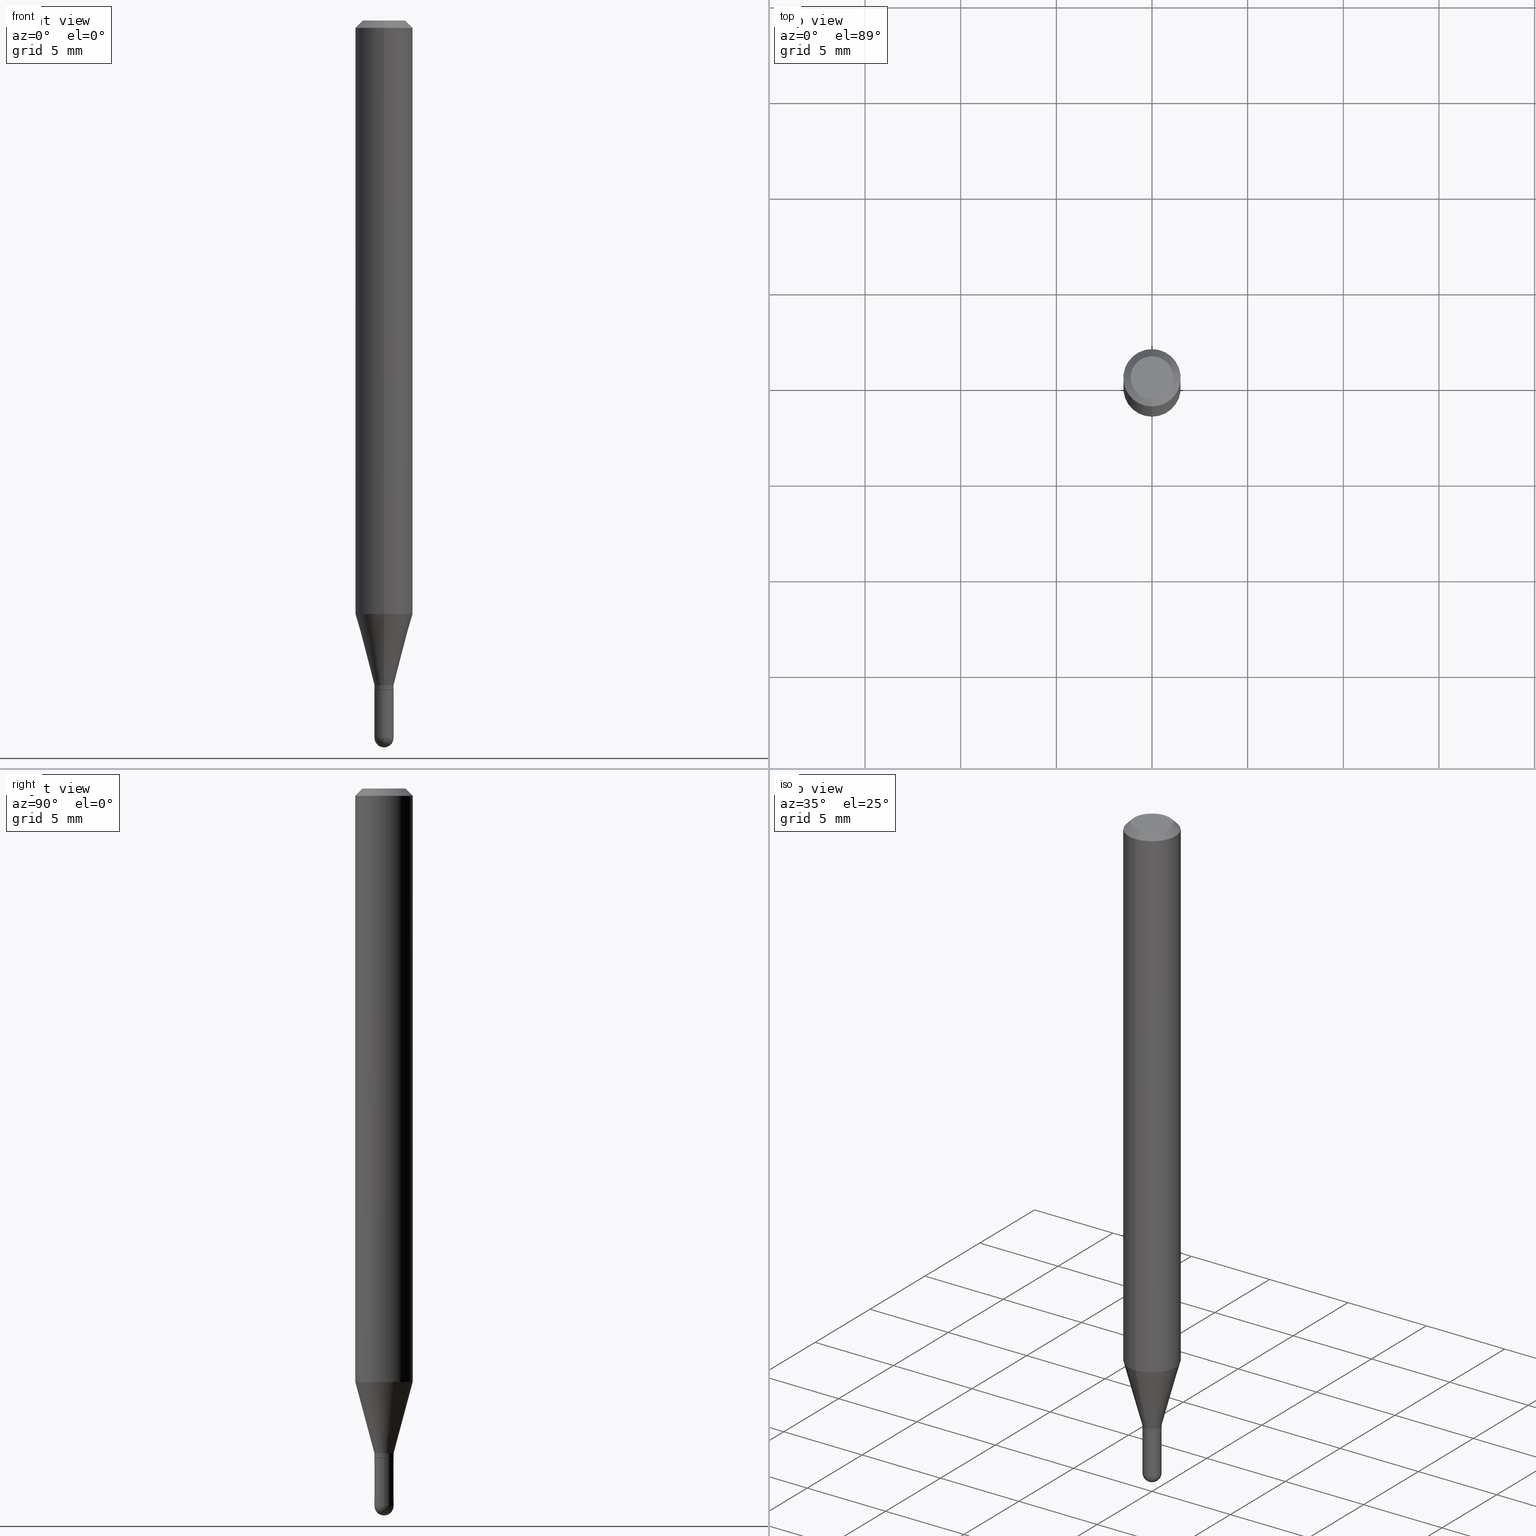
[diagram: canonical four-view strip — front | top / right | iso, engineering-drawing reading convention]
A machine part, canonical four-view strip (front | top / right | iso — engineering-drawing reading convention). The complete STEP part file that produces these views, byte-faithful:
ISO-10303-21;
HEADER;
FILE_DESCRIPTION (( 'STEP AP203' ),
    '1' );
FILE_NAME ('01949.STEP',
    '2024-03-07T19:46:34',
    ( '' ),
    ( '' ),
    'SwSTEP 2.0',
    'SolidWorks 2023',
    '' );
FILE_SCHEMA (( 'CONFIG_CONTROL_DESIGN' ));
ENDSEC;

DATA;
#1 = EDGE_CURVE ( 'NONE', #68, #279, #496, .T. ) ;
#2 = DIMENSIONAL_EXPONENTS ( 1.000000000000000000, 0.000000000000000000, 0.000000000000000000, 0.000000000000000000, 0.000000000000000000, 0.000000000000000000, 0.000000000000000000 ) ;
#3 = ORIENTED_EDGE ( 'NONE', *, *, #20, .F. ) ;
#4 = DIRECTION ( 'NONE',  ( -6.982962677686266711E-15, -1.000000000000000000, 0.000000000000000000 ) ) ;
#5 = ADVANCED_FACE ( 'NONE', ( #275 ), #423, .T. ) ;
#6 = ORIENTED_EDGE ( 'NONE', *, *, #16, .T. ) ;
#7 = DIRECTION ( 'NONE',  ( -6.982962677686266711E-15, -1.000000000000000000, 0.000000000000000000 ) ) ;
#8 = AXIS2_PLACEMENT_3D ( 'NONE', #19, #184, #501 ) ;
#9 = CARTESIAN_POINT ( 'NONE',  ( 0.000000000000000000, 0.000000000000000000, 0.000000000000000000 ) ) ;
#10 = DIRECTION ( 'NONE',  ( -2.444811295007267252E-29, 3.492422932273066730E-15, 1.000000000000000000 ) ) ;
#11 = DIRECTION ( 'NONE',  ( -6.982962677686265133E-15, -1.000000000000000000, 3.492422932273066336E-15 ) ) ;
#12 = SHAPE_DEFINITION_REPRESENTATION ( #285, #313 ) ;
#13 = DIRECTION ( 'NONE',  ( -2.445468806185136597E-29, 3.491481338843145583E-15, 1.000000000000000000 ) ) ;
#14 = CIRCLE ( 'NONE', #204, 0.01969999999999999876 ) ;
#15 = CARTESIAN_POINT ( 'NONE',  ( 1.375643647504531108E-16, 0.01969999999999518664, -1.377999999999999892 ) ) ;
#16 = EDGE_CURVE ( 'NONE', #244, #279, #493, .T. ) ;
#17 = DIRECTION ( 'NONE',  ( -4.937700262164664794E-15, -0.7071067811865617836, 0.7071067811865333619 ) ) ;
#18 = VERTEX_POINT ( 'NONE', #417 ) ;
#19 = CARTESIAN_POINT ( 'NONE',  ( 0.000000000000000000, 0.000000000000000000, 0.000000000000000000 ) ) ;
#20 = EDGE_CURVE ( 'NONE', #68, #41, #292, .T. ) ;
#21 = EDGE_CURVE ( 'NONE', #326, #479, #415, .T. ) ;
#22 = ORIENTED_EDGE ( 'NONE', *, *, #192, .T. ) ;
#23 = CARTESIAN_POINT ( 'NONE',  ( -1.340728834115426067E-16, -0.01920000000000481044, -1.377999999999999892 ) ) ;
#24 = DIRECTION ( 'NONE',  ( 1.000000000000000000, -6.982962677686278543E-15, 0.000000000000000000 ) ) ;
#25 = DIRECTION ( 'NONE',  ( -2.445468806185136597E-29, 3.491481338843145583E-15, 1.000000000000000000 ) ) ;
#26 = VECTOR ( 'NONE', #215, 39.37007874015748143 ) ;
#27 = SECURITY_CLASSIFICATION ( '', '', #484 ) ;
#28 = DESIGN_CONTEXT ( 'detailed design', #365, 'design' ) ;
#29 = CARTESIAN_POINT ( 'NONE',  ( 1.399769189447725642E-16, 0.01969999999999514154, -1.368099999999999650 ) ) ;
#30 = CARTESIAN_POINT ( 'NONE',  ( 0.000000000000000000, 0.000000000000000000, 0.000000000000000000 ) ) ;
#31 = ORIENTED_EDGE ( 'NONE', *, *, #53, .F. ) ;
#32 = PERSON_AND_ORGANIZATION_ROLE ( 'classification_officer' ) ;
#33 = ORIENTED_EDGE ( 'NONE', *, *, #143, .T. ) ;
#34 = EDGE_CURVE ( 'NONE', #507, #435, #231, .T. ) ;
#35 = CC_DESIGN_PERSON_AND_ORGANIZATION_ASSIGNMENT ( #246, #264, ( #256 ) ) ;
#36 = COORDINATED_UNIVERSAL_TIME_OFFSET ( 5, 0, .BEHIND. ) ;
#37 = EDGE_LOOP ( 'NONE', ( #72, #323, #164, #200, #396 ) ) ;
#38 = LINE ( 'NONE', #165, #214 ) ;
#39 = AXIS2_PLACEMENT_3D ( 'NONE', #368, #129, #98 ) ;
#40 = EDGE_LOOP ( 'NONE', ( #187, #303, #480, #112 ) ) ;
#41 = VERTEX_POINT ( 'NONE', #453 ) ;
#42 = ORIENTED_EDGE ( 'NONE', *, *, #464, .F. ) ;
#43 = DIRECTION ( 'NONE',  ( -6.982962677686265922E-15, -1.000000000000000000, 3.492422932273067519E-15 ) ) ;
#44 = CARTESIAN_POINT ( 'NONE',  ( 3.608805467862051881E-29, -5.157235602862340147E-15, -1.476399999999999935 ) ) ;
#45 = AXIS2_PLACEMENT_3D ( 'NONE', #186, #462, #66 ) ;
#46 = PERSON_AND_ORGANIZATION ( #319, #254 ) ;
#47 = DIRECTION ( 'NONE',  ( -1.000000000000000000, 6.982962677686265922E-15, -4.876176775795935793E-29 ) ) ;
#48 = AXIS2_PLACEMENT_3D ( 'NONE', #427, #83, #401 ) ;
#49 = CIRCLE ( 'NONE', #352, 0.01969999999999991896 ) ;
#50 = VERTEX_POINT ( 'NONE', #23 ) ;
#51 = APPROVAL_STATUS ( 'not_yet_approved' ) ;
#52 = CARTESIAN_POINT ( 'NONE',  ( 1.382005621053728545E-16, 0.01919999999999518620, -1.377999999999999892 ) ) ;
#53 = EDGE_CURVE ( 'NONE', #18, #435, #196, .T. ) ;
#54 = COORDINATED_UNIVERSAL_TIME_OFFSET ( 5, 0, .BEHIND. ) ;
#55 = DIRECTION ( 'NONE',  ( -2.444811295007267252E-29, 3.492422932273066730E-15, 1.000000000000000000 ) ) ;
#56 = DATE_AND_TIME ( #135, #371 ) ;
#57 = CC_DESIGN_PERSON_AND_ORGANIZATION_ASSIGNMENT ( #367, #87, ( #307 ) ) ;
#58 = DIRECTION ( 'NONE',  ( -2.445468806185136597E-29, 3.491481338843145583E-15, 1.000000000000000000 ) ) ;
#59 = EDGE_LOOP ( 'NONE', ( #138, #209, #355, #468 ) ) ;
#60 = ORIENTED_EDGE ( 'NONE', *, *, #192, .F. ) ;
#61 = DIRECTION ( 'NONE',  ( -2.445468806185136597E-29, 3.491481338843145583E-15, 1.000000000000000000 ) ) ;
#62 = CYLINDRICAL_SURFACE ( 'NONE', #309, 0.01969999999999991896 ) ;
#63 = FACE_OUTER_BOUND ( 'NONE', #37, .T. ) ;
#64 = APPROVAL ( #508, 'UNSPECIFIED' ) ;
#65 = DIRECTION ( 'NONE',  ( -6.982962677686266711E-15, -1.000000000000000000, 0.000000000000000000 ) ) ;
#66 = DIRECTION ( 'NONE',  ( 7.105427357601000281E-15, 1.000000000000000000, 0.000000000000000000 ) ) ;
#67 = CIRCLE ( 'NONE', #429, 0.01969999999999989468 ) ;
#68 = VERTEX_POINT ( 'NONE', #105 ) ;
#69 = CARTESIAN_POINT ( 'NONE',  ( 4.123439461173743285E-16, 0.05904999999999994975, -0.01500000000000023016 ) ) ;
#70 = VERTEX_POINT ( 'NONE', #171 ) ;
#71 = PRODUCT_DEFINITION ( 'UNKNOWN', '', #307, #28 ) ;
#72 = ORIENTED_EDGE ( 'NONE', *, *, #1, .F. ) ;
#73 = DIRECTION ( 'NONE',  ( 1.000000000000000000, 0.000000000000000000, 0.000000000000000000 ) ) ;
#74 = AXIS2_PLACEMENT_3D ( 'NONE', #413, #230, #506 ) ;
#75 = ORIENTED_EDGE ( 'NONE', *, *, #143, .F. ) ;
#76 = LOCAL_TIME ( 14, 46, 34.00000000000000000, #495 ) ;
#77 = VECTOR ( 'NONE', #461, 39.37007874015748143 ) ;
#78 = ORIENTED_EDGE ( 'NONE', *, *, #53, .T. ) ;
#79 = DIRECTION ( 'NONE',  ( -6.982962677686265922E-15, -1.000000000000000000, 3.505890868245046092E-15 ) ) ;
#80 =( LENGTH_UNIT ( ) NAMED_UNIT ( * ) SI_UNIT ( $, .METRE. ) );
#81 = EDGE_CURVE ( 'NONE', #376, #18, #505, .T. ) ;
#82 = DIRECTION ( 'NONE',  ( -6.982962677686265922E-15, -1.000000000000000000, 4.626330217890369336E-15 ) ) ;
#83 = DIRECTION ( 'NONE',  ( -2.445468806185136597E-29, 3.491481338843145583E-15, 1.000000000000000000 ) ) ;
#84 = MECHANICAL_CONTEXT ( 'NONE', #467, 'mechanical' ) ;
#85 = FACE_OUTER_BOUND ( 'NONE', #419, .T. ) ;
#86 = APPROVAL_PERSON_ORGANIZATION ( #160, #389, #88 ) ;
#87 = PERSON_AND_ORGANIZATION_ROLE ( 'design_supplier' ) ;
#88 = APPROVAL_ROLE ( '' ) ;
#89 = CARTESIAN_POINT ( 'NONE',  ( -0.01969999999999999876, -4.843065247852196904E-15, -1.377999999999999892 ) ) ;
#90 =( NAMED_UNIT ( * ) SI_UNIT ( $, .STERADIAN. ) SOLID_ANGLE_UNIT ( ) );
#91 = PLANE ( 'NONE',  #221 ) ;
#92 = DIRECTION ( 'NONE',  ( 6.982962677686265922E-15, 1.000000000000000000, -3.505890868245046092E-15 ) ) ;
#93 = EDGE_CURVE ( 'NONE', #50, #333, #172, .T. ) ;
#94 = FACE_OUTER_BOUND ( 'NONE', #476, .T. ) ;
#95 = AXIS2_PLACEMENT_3D ( 'NONE', #252, #421, #65 ) ;
#96 = DIRECTION ( 'NONE',  ( -2.444811295007267252E-29, 3.492422932273066730E-15, 1.000000000000000000 ) ) ;
#97 = AXIS2_PLACEMENT_3D ( 'NONE', #189, #345, #308 ) ;
#98 = DIRECTION ( 'NONE',  ( 6.982962677686265922E-15, 1.000000000000000000, -3.492422932273066730E-15 ) ) ;
#99 = DIRECTION ( 'NONE',  ( 1.000000000000000000, -6.982962677686278543E-15, 0.000000000000000000 ) ) ;
#100 = ORIENTED_EDGE ( 'NONE', *, *, #412, .F. ) ;
#101 = CYLINDRICAL_SURFACE ( 'NONE', #242, 0.01969999999999999876 ) ;
#102 = CARTESIAN_POINT ( 'NONE',  ( 3.368949964520014431E-29, -4.812558800672285080E-15, -1.377999999999999892 ) ) ;
#103 = AXIS2_PLACEMENT_3D ( 'NONE', #210, #362, #7 ) ;
#104 = EDGE_LOOP ( 'NONE', ( #60, #395, #277, #42 ) ) ;
#105 = CARTESIAN_POINT ( 'NONE',  ( -0.01969999999999999876, -4.843065247852196904E-15, -1.476399999999999491 ) ) ;
#106 = EDGE_CURVE ( 'NONE', #450, #18, #193, .T. ) ;
#107 = DIRECTION ( 'NONE',  ( -6.982962677686266711E-15, -1.000000000000000000, 0.000000000000000000 ) ) ;
#108 = DIRECTION ( 'NONE',  ( -2.444811295007267252E-29, 3.492422932273066730E-15, 1.000000000000000000 ) ) ;
#109 = EDGE_CURVE ( 'NONE', #70, #306, #431, .T. ) ;
#110 = PERSON_AND_ORGANIZATION ( #319, #254 ) ;
#111 = DIRECTION ( 'NONE',  ( -6.982962677686266711E-15, -1.000000000000000000, 0.000000000000000000 ) ) ;
#112 = ORIENTED_EDGE ( 'NONE', *, *, #81, .F. ) ;
#113 = APPROVAL_ROLE ( '' ) ;
#114 = ORIENTED_EDGE ( 'NONE', *, *, #317, .T. ) ;
#115 = DIRECTION ( 'NONE',  ( 1.000000000000000000, -6.982962677686278543E-15, 0.000000000000000000 ) ) ;
#116 = DATE_AND_TIME ( #320, #381 ) ;
#117 = ORIENTED_EDGE ( 'NONE', *, *, #130, .F. ) ;
#118 = CIRCLE ( 'NONE', #168, 0.01969999999999999876 ) ;
#119 = ORIENTED_EDGE ( 'NONE', *, *, #356, .F. ) ;
#120 = FACE_OUTER_BOUND ( 'NONE', #104, .T. ) ;
#121 = UNCERTAINTY_MEASURE_WITH_UNIT (LENGTH_MEASURE( 1.000000000000000082E-05 ), #441, 'distance_accuracy_value', 'NONE');
#122 = ORIENTED_EDGE ( 'NONE', *, *, #372, .T. ) ;
#123 = DIRECTION ( 'NONE',  ( 1.000000000000000000, -6.982962677686266711E-15, 4.883557194083112340E-29 ) ) ;
#124 = CYLINDRICAL_SURFACE ( 'NONE', #346, 0.01969999999999991896 ) ;
#125 = ORIENTED_EDGE ( 'NONE', *, *, #183, .T. ) ;
#126 = CARTESIAN_POINT ( 'NONE',  ( 3.368949964520014431E-29, -4.812558800672285080E-15, -1.377999999999999892 ) ) ;
#127 = ADVANCED_FACE ( 'NONE', ( #239 ), #359, .T. ) ;
#128 = AXIS2_PLACEMENT_3D ( 'NONE', #126, #314, #111 ) ;
#129 = DIRECTION ( 'NONE',  ( 2.444811295007266972E-29, -3.492422932273066730E-15, -1.000000000000000000 ) ) ;
#130 = EDGE_CURVE ( 'NONE', #479, #326, #393, .T. ) ;
#131 = AXIS2_PLACEMENT_3D ( 'NONE', #266, #451, #411 ) ;
#132 = AXIS2_PLACEMENT_3D ( 'NONE', #102, #96, #447 ) ;
#133 = DIRECTION ( 'NONE',  ( 2.438088387897960049E-29, -3.491481338843145188E-15, -1.000000000000000000 ) ) ;
#134 = DIRECTION ( 'NONE',  ( 5.024295867788180719E-15, 0.7071067811865666686, 0.7071067811865284769 ) ) ;
#135 = CALENDAR_DATE ( 2024, 7, 3 ) ;
#136 = DATE_AND_TIME ( #489, #76 ) ;
#137 = CARTESIAN_POINT ( 'NONE',  ( -0.01969999999999999876, 1.399769189447397278E-16, -9.690302127802162501E-31 ) ) ;
#138 = ORIENTED_EDGE ( 'NONE', *, *, #190, .F. ) ;
#139 = CIRCLE ( 'NONE', #422, 0.01919999999999999832 ) ;
#140 = CIRCLE ( 'NONE', #348, 0.01969999999999999876 ) ;
#141 = CLOSED_SHELL ( 'NONE', ( #375, #5, #302, #349, #379, #212, #127, #402, #227, #370, #203, #452 ) ) ;
#142 = CARTESIAN_POINT ( 'NONE',  ( 0.000000000000000000, 0.000000000000000000, 0.000000000000000000 ) ) ;
#143 = EDGE_CURVE ( 'NONE', #470, #450, #490, .T. ) ;
#144 = FACE_OUTER_BOUND ( 'NONE', #465, .T. ) ;
#145 = ORIENTED_EDGE ( 'NONE', *, *, #106, .T. ) ;
#146 = CARTESIAN_POINT ( 'NONE',  ( -4.051124067684085231E-16, -0.05905000000000005383, -0.01499999999999981730 ) ) ;
#147 = CARTESIAN_POINT ( 'NONE',  ( 3.599717260347271507E-16, 0.04404999999999999888, -1.776619958574267450E-16 ) ) ;
#148 = CARTESIAN_POINT ( 'NONE',  ( 3.367727558872510163E-29, -4.810812589206148857E-15, -1.377499999999999947 ) ) ;
#149 = ORIENTED_EDGE ( 'NONE', *, *, #109, .T. ) ;
#150 = ADVANCED_FACE ( 'NONE', ( #85 ), #385, .T. ) ;
#151 = CIRCLE ( 'NONE', #405, 0.04404999999999999888 ) ;
#152 = DIRECTION ( 'NONE',  ( -2.444811295007267252E-29, 3.492422932273066730E-15, 1.000000000000000000 ) ) ;
#153 = AXIS2_PLACEMENT_3D ( 'NONE', #380, #301, #271 ) ;
#154 = EDGE_LOOP ( 'NONE', ( #392, #114, #161, #344 ) ) ;
#155 = DIRECTION ( 'NONE',  ( -2.444811295007267252E-29, 3.492422932273066730E-15, 1.000000000000000000 ) ) ;
#156 = CARTESIAN_POINT ( 'NONE',  ( 3.368949964520014431E-29, -4.812558800672285080E-15, -1.377999999999999892 ) ) ;
#157 = CARTESIAN_POINT ( 'NONE',  ( 2.985710637963151860E-29, -4.265099855538406098E-15, -1.221243800722164430 ) ) ;
#158 = LINE ( 'NONE', #199, #298 ) ;
#159 = EDGE_LOOP ( 'NONE', ( #235, #224 ) ) ;
#160 = PERSON_AND_ORGANIZATION ( #319, #254 ) ;
#161 = ORIENTED_EDGE ( 'NONE', *, *, #372, .F. ) ;
#162 = DIRECTION ( 'NONE',  ( -2.445468806185136597E-29, 3.491481338843145583E-15, 1.000000000000000000 ) ) ;
#163 = DIRECTION ( 'NONE',  ( 0.000000000000000000, 0.000000000000000000, 1.000000000000000000 ) ) ;
#164 = ORIENTED_EDGE ( 'NONE', *, *, #238, .T. ) ;
#165 = CARTESIAN_POINT ( 'NONE',  ( -1.375643647504188693E-16, -0.01969999999999991896, 6.880073176577914602E-17 ) ) ;
#166 = ORIENTED_EDGE ( 'NONE', *, *, #16, .F. ) ;
#167 = CARTESIAN_POINT ( 'NONE',  ( -3.536586717851222218E-16, -0.04404999999999999888, 1.300204644758304070E-16 ) ) ;
#168 = AXIS2_PLACEMENT_3D ( 'NONE', #446, #449, #265 ) ;
#169 = ORIENTED_EDGE ( 'NONE', *, *, #296, .T. ) ;
#170 = AXIS2_PLACEMENT_3D ( 'NONE', #398, #328, #79 ) ;
#171 = CARTESIAN_POINT ( 'NONE',  ( 0.01969999999999999876, -5.120606531547356216E-15, -1.476399999999999491 ) ) ;
#172 = CIRCLE ( 'NONE', #95, 0.01919999999999999832 ) ;
#173 = DIRECTION ( 'NONE',  ( -2.444811295007267252E-29, 3.492422932273066730E-15, 1.000000000000000000 ) ) ;
#174 = CARTESIAN_POINT ( 'NONE',  ( 0.000000000000000000, 0.000000000000000000, 0.000000000000000000 ) ) ;
#175 = APPROVAL_STATUS ( 'not_yet_approved' ) ;
#176 = PLANE ( 'NONE',  #39 ) ;
#177 = AXIS2_PLACEMENT_3D ( 'NONE', #261, #55, #258 ) ;
#178 = DIRECTION ( 'NONE',  ( 1.000000000000000000, -6.982962677686278543E-15, 0.000000000000000000 ) ) ;
#179 = APPROVAL_PERSON_ORGANIZATION ( #110, #64, #113 ) ;
#180 = CARTESIAN_POINT ( 'NONE',  ( 4.195754854663687794E-16, 0.05904999999999571703, -1.221243800722164652 ) ) ;
#181 = CARTESIAN_POINT ( 'NONE',  ( 3.369856014923117948E-29, -4.811261284925853951E-15, -1.377999999999999892 ) ) ;
#182 = CARTESIAN_POINT ( 'NONE',  ( 3.610490145451734531E-29, -5.154823048668018475E-15, -1.476399999999999491 ) ) ;
#183 = EDGE_CURVE ( 'NONE', #288, #41, #67, .T. ) ;
#184 = DIRECTION ( 'NONE',  ( -2.444811295007267252E-29, 3.492422932273066730E-15, 1.000000000000000000 ) ) ;
#185 = CIRCLE ( 'NONE', #45, 0.01969999999999989468 ) ;
#186 = CARTESIAN_POINT ( 'NONE',  ( 3.608805467862051881E-29, -5.157235602862340147E-15, -1.476399999999999935 ) ) ;
#187 = ORIENTED_EDGE ( 'NONE', *, *, #259, .F. ) ;
#188 = PERSON_AND_ORGANIZATION ( #319, #254 ) ;
#189 = CARTESIAN_POINT ( 'NONE',  ( 3.667216942510906659E-31, -5.238634398409608650E-17, -0.01500000000000002373 ) ) ;
#190 = EDGE_CURVE ( 'NONE', #428, #326, #460, .T. ) ;
#191 = ORIENTED_EDGE ( 'NONE', *, *, #238, .F. ) ;
#192 = EDGE_CURVE ( 'NONE', #326, #450, #249, .T. ) ;
#193 = LINE ( 'NONE', #255, #485 ) ;
#194 = CONICAL_SURFACE ( 'NONE', #74, 0.05904999999999999832, 0.7853981633974483900 ) ;
#195 = DIRECTION ( 'NONE',  ( -6.982962677686265922E-15, -1.000000000000000000, 3.492422932273067519E-15 ) ) ;
#196 = CIRCLE ( 'NONE', #97, 0.05904999999999999832 ) ;
#197 = DIRECTION ( 'NONE',  ( 1.839019923739601104E-15, 0.2588190451025250693, 0.9659258262890670910 ) ) ;
#198 = CC_DESIGN_DATE_AND_TIME_ASSIGNMENT ( #136, #262, ( #27 ) ) ;
#199 = CARTESIAN_POINT ( 'NONE',  ( -4.123439461173739834E-16, -0.05904999999999999832, 2.062275741507245947E-16 ) ) ;
#200 = ORIENTED_EDGE ( 'NONE', *, *, #391, .T. ) ;
#201 = ORIENTED_EDGE ( 'NONE', *, *, #109, .F. ) ;
#202 = CONICAL_SURFACE ( 'NONE', #374, 0.01969999999999991550, 0.2617993877991502960 ) ;
#203 = ADVANCED_FACE ( 'NONE', ( #473 ), #474, .T. ) ;
#204 = AXIS2_PLACEMENT_3D ( 'NONE', #181, #13, #178 ) ;
#205 = VERTEX_POINT ( 'NONE', #324 ) ;
#206 = APPROVAL ( #51, 'UNSPECIFIED' ) ;
#207 =( NAMED_UNIT ( * ) PLANE_ANGLE_UNIT ( ) SI_UNIT ( $, .RADIAN. ) );
#208 = CALENDAR_DATE ( 2024, 7, 3 ) ;
#209 = ORIENTED_EDGE ( 'NONE', *, *, #356, .T. ) ;
#210 = CARTESIAN_POINT ( 'NONE',  ( 3.344746332699441266E-29, -4.777983813642781074E-15, -1.368099999999999650 ) ) ;
#211 = CARTESIAN_POINT ( 'NONE',  ( 2.985710637963151860E-29, -4.265099855538406098E-15, -1.221243800722164430 ) ) ;
#212 = ADVANCED_FACE ( 'NONE', ( #120 ), #325, .T. ) ;
#213 = CIRCLE ( 'NONE', #170, 0.05904999999999999832 ) ;
#214 = VECTOR ( 'NONE', #361, 39.37007874015748143 ) ;
#215 = DIRECTION ( 'NONE',  ( -2.444811295007267252E-29, 3.492422932273066730E-15, 1.000000000000000000 ) ) ;
#216 = PRODUCT_RELATED_PRODUCT_CATEGORY ( 'detail', '', ( #256 ) ) ;
#217 = DIRECTION ( 'NONE',  ( -2.444811295007267252E-29, 3.492422932273066730E-15, 1.000000000000000000 ) ) ;
#218 = PERSON_AND_ORGANIZATION_ROLE ( 'creator' ) ;
#219 = CARTESIAN_POINT ( 'NONE',  ( 0.01969999999999999876, -4.948825649676273954E-15, -1.377999999999999892 ) ) ;
#220 = CLOSED_SHELL ( 'NONE', ( #437, #150, #283, #399, #383 ) ) ;
#221 = AXIS2_PLACEMENT_3D ( 'NONE', #156, #343, #341 ) ;
#222 = CARTESIAN_POINT ( 'NONE',  ( 1.399769189447754238E-16, 0.01969999999999479112, -1.476399999999999491 ) ) ;
#223 = AXIS2_PLACEMENT_3D ( 'NONE', #148, #108, #418 ) ;
#224 = ORIENTED_EDGE ( 'NONE', *, *, #268, .F. ) ;
#225 = APPROVAL_ROLE ( '' ) ;
#226 = FACE_OUTER_BOUND ( 'NONE', #316, .T. ) ;
#227 = ADVANCED_FACE ( 'NONE', ( #94 ), #176, .F. ) ;
#228 = CARTESIAN_POINT ( 'NONE',  ( -4.123439461173442532E-16, -0.05905000000000428656, -1.221243800722164430 ) ) ;
#229 = CC_DESIGN_PERSON_AND_ORGANIZATION_ASSIGNMENT ( #46, #218, ( #71 ) ) ;
#230 = DIRECTION ( 'NONE',  ( 2.444811295007267252E-29, -3.492422932273066730E-15, -1.000000000000000000 ) ) ;
#231 = LINE ( 'NONE', #146, #334 ) ;
#232 = EDGE_CURVE ( 'NONE', #479, #470, #400, .T. ) ;
#233 = EDGE_LOOP ( 'NONE', ( #6, #169 ) ) ;
#234 = EDGE_CURVE ( 'NONE', #376, #507, #151, .T. ) ;
#235 = ORIENTED_EDGE ( 'NONE', *, *, #93, .F. ) ;
#236 = CARTESIAN_POINT ( 'NONE',  ( 3.610490145451734531E-29, -5.154823048668018475E-15, -1.476399999999999491 ) ) ;
#237 = ORIENTED_EDGE ( 'NONE', *, *, #510, .F. ) ;
#238 = EDGE_CURVE ( 'NONE', #41, #70, #118, .T. ) ;
#239 = FACE_OUTER_BOUND ( 'NONE', #497, .T. ) ;
#240 = ORIENTED_EDGE ( 'NONE', *, *, #81, .T. ) ;
#241 = EDGE_LOOP ( 'NONE', ( #122, #342, #117, #237 ) ) ;
#242 = AXIS2_PLACEMENT_3D ( 'NONE', #142, #25, #299 ) ;
#243 = CC_DESIGN_APPROVAL ( #64, ( #307 ) ) ;
#244 = VERTEX_POINT ( 'NONE', #219 ) ;
#245 = CONICAL_SURFACE ( 'NONE', #445, 0.05904999999999999832, 0.7853981633974483900 ) ;
#246 = PERSON_AND_ORGANIZATION ( #319, #254 ) ;
#247 = LENGTH_MEASURE_WITH_UNIT ( LENGTH_MEASURE( 0.02539999999999999897 ), #80 );
#248 = ORIENTED_EDGE ( 'NONE', *, *, #297, .T. ) ;
#249 = LINE ( 'NONE', #29, #331 ) ;
#250 = COORDINATED_UNIVERSAL_TIME_OFFSET ( 5, 0, .BEHIND. ) ;
#251 = DIRECTION ( 'NONE',  ( -6.982962677686265922E-15, -1.000000000000000000, 4.626330217890369336E-15 ) ) ;
#252 = CARTESIAN_POINT ( 'NONE',  ( 3.368949964520014431E-29, -4.812558800672285080E-15, -1.377999999999999892 ) ) ;
#253 = MANIFOLD_SOLID_BREP ( 'Body-Move/Copy2[1]', #220 ) ;
#254 = ORGANIZATION ( 'UNSPECIFIED', 'UNSPECIFIED', '' ) ;
#255 = CARTESIAN_POINT ( 'NONE',  ( 4.195754854663390985E-16, 0.05904999999999999832, -2.062275741507245947E-16 ) ) ;
#256 = PRODUCT ( '01949', '01949', '', ( #84 ) ) ;
#257 = FACE_OUTER_BOUND ( 'NONE', #233, .T. ) ;
#258 = DIRECTION ( 'NONE',  ( -6.982962677686265133E-15, -1.000000000000000000, 3.492422932273066336E-15 ) ) ;
#259 = EDGE_CURVE ( 'NONE', #507, #376, #482, .T. ) ;
#260 = VECTOR ( 'NONE', #340, 39.37007874015748143 ) ;
#261 = CARTESIAN_POINT ( 'NONE',  ( 5.823727701658493380E-46, -8.319218836284696553E-32, -2.382076569079815975E-17 ) ) ;
#262 = DATE_TIME_ROLE ( 'classification_date' ) ;
#263 = CARTESIAN_POINT ( 'NONE',  ( 3.369856014923117948E-29, -4.811261284925853951E-15, -1.377999999999999892 ) ) ;
#264 = PERSON_AND_ORGANIZATION_ROLE ( 'design_owner' ) ;
#265 = DIRECTION ( 'NONE',  ( 1.000000000000000000, -6.982962677686278543E-15, 0.000000000000000000 ) ) ;
#266 = CARTESIAN_POINT ( 'NONE',  ( 3.344746332699441266E-29, -4.777983813642781074E-15, -1.368099999999999650 ) ) ;
#267 = FACE_OUTER_BOUND ( 'NONE', #282, .T. ) ;
#268 = EDGE_CURVE ( 'NONE', #333, #50, #139, .T. ) ;
#269 = CC_DESIGN_PERSON_AND_ORGANIZATION_ASSIGNMENT ( #188, #32, ( #27 ) ) ;
#270 = DIRECTION ( 'NONE',  ( -2.445468806185136877E-29, 3.491481338843145188E-15, 1.000000000000000000 ) ) ;
#271 = DIRECTION ( 'NONE',  ( -6.982962677686266711E-15, -1.000000000000000000, 0.000000000000000000 ) ) ;
#272 = AXIS2_PLACEMENT_3D ( 'NONE', #236, #502, #24 ) ;
#273 = FACE_OUTER_BOUND ( 'NONE', #329, .T. ) ;
#274 = AXIS2_PLACEMENT_3D ( 'NONE', #351, #155, #107 ) ;
#275 = FACE_OUTER_BOUND ( 'NONE', #154, .T. ) ;
#276 = DIRECTION ( 'NONE',  ( -6.982962677686265922E-15, -1.000000000000000000, 0.000000000000000000 ) ) ;
#277 = ORIENTED_EDGE ( 'NONE', *, *, #232, .T. ) ;
#278 = DIRECTION ( 'NONE',  ( 4.937700262164548042E-15, 0.7071067811865451302, -0.7071067811865499042 ) ) ;
#279 = VERTEX_POINT ( 'NONE', #89 ) ;
#280 = ORIENTED_EDGE ( 'NONE', *, *, #492, .T. ) ;
#281 = CALENDAR_DATE ( 2024, 7, 3 ) ;
#282 = EDGE_LOOP ( 'NONE', ( #499, #424, #240, #78 ) ) ;
#283 = ADVANCED_FACE ( 'NONE', ( #257 ), #404, .F. ) ;
#284 = VECTOR ( 'NONE', #270, 39.37007874015748143 ) ;
#285 = PRODUCT_DEFINITION_SHAPE ( 'NONE', 'NONE',  #71 ) ;
#286 = ORIENTED_EDGE ( 'NONE', *, *, #259, .T. ) ;
#287 = CIRCLE ( 'NONE', #223, 0.01969999999999991896 ) ;
#288 = VERTEX_POINT ( 'NONE', #337 ) ;
#289 = DIRECTION ( 'NONE',  ( -1.000000000000000000, 6.982962677686265922E-15, -4.883557194083112340E-29 ) ) ;
#290 = ORIENTED_EDGE ( 'NONE', *, *, #475, .F. ) ;
#291 = DIRECTION ( 'NONE',  ( -2.444811295007267252E-29, 3.492422932273066730E-15, 1.000000000000000000 ) ) ;
#292 = CIRCLE ( 'NONE', #408, 0.01969999999999999876 ) ;
#293 = CARTESIAN_POINT ( 'NONE',  ( -1.340728834115426067E-16, -0.01920000000000481044, -1.377999999999999892 ) ) ;
#294 = CARTESIAN_POINT ( 'NONE',  ( 2.797762022055708567E-16, 0.01969999999999514154, -1.368099999999999650 ) ) ;
#295 = FACE_OUTER_BOUND ( 'NONE', #59, .T. ) ;
#296 = EDGE_CURVE ( 'NONE', #279, #244, #14, .T. ) ;
#297 = EDGE_CURVE ( 'NONE', #50, #205, #335, .T. ) ;
#298 = VECTOR ( 'NONE', #463, 39.37007874015748143 ) ;
#299 = DIRECTION ( 'NONE',  ( 1.000000000000000000, -6.982962677686265922E-15, 4.876176775795935232E-29 ) ) ;
#300 = ORIENTED_EDGE ( 'NONE', *, *, #106, .F. ) ;
#301 = DIRECTION ( 'NONE',  ( 1.000000000000000000, -6.982962677686266711E-15, 4.883557194083112340E-29 ) ) ;
#302 = ADVANCED_FACE ( 'NONE', ( #443 ), #245, .T. ) ;
#303 = ORIENTED_EDGE ( 'NONE', *, *, #34, .T. ) ;
#304 = DIRECTION ( 'NONE',  ( -4.851104656540964275E-15, -0.7071067811865500152, -0.7071067811865450192 ) ) ;
#305 = AXIS2_PLACEMENT_3D ( 'NONE', #15, #133, #47 ) ;
#306 = VERTEX_POINT ( 'NONE', #222 ) ;
#307 = PRODUCT_DEFINITION_FORMATION_WITH_SPECIFIED_SOURCE ( 'ANY', '', #256, .NOT_KNOWN. ) ;
#308 = DIRECTION ( 'NONE',  ( -6.982962677686265922E-15, -1.000000000000000000, 3.505890868245046092E-15 ) ) ;
#309 = AXIS2_PLACEMENT_3D ( 'NONE', #30, #458, #195 ) ;
#310 = ORIENTED_EDGE ( 'NONE', *, *, #457, .F. ) ;
#311 = CC_DESIGN_DATE_AND_TIME_ASSIGNMENT ( #436, #504, ( #71 ) ) ;
#312 = CARTESIAN_POINT ( 'NONE',  ( 0.01969999999999999876, -1.375643647504194363E-16, 9.606068248317991466E-31 ) ) ;
#313 = ADVANCED_BREP_SHAPE_REPRESENTATION ( '01949', ( #253, #403, #430 ), #466 ) ;
#314 = DIRECTION ( 'NONE',  ( -2.444811295007267252E-29, 3.492422932273066730E-15, 1.000000000000000000 ) ) ;
#315 = CARTESIAN_POINT ( 'NONE',  ( -4.123439461173736383E-16, -0.05905000000000005383, -0.01499999999999981730 ) ) ;
#316 = EDGE_LOOP ( 'NONE', ( #33, #145, #310, #100 ) ) ;
#317 = EDGE_CURVE ( 'NONE', #333, #428, #409, .T. ) ;
#318 = APPROVAL_PERSON_ORGANIZATION ( #407, #206, #225 ) ;
#319 = PERSON ( 'UNSPECIFIED', 'UNSPECIFIED', 'UNSPECIFIED', ('UNSPECIFIED'), ('UNSPECIFIED'), ('UNSPECIFIED') ) ;
#320 = CALENDAR_DATE ( 2024, 7, 3 ) ;
#321 = ORIENTED_EDGE ( 'NONE', *, *, #492, .F. ) ;
#322 = APPLICATION_PROTOCOL_DEFINITION ( 'international standard', 'config_control_design', 1994, #467 ) ;
#323 = ORIENTED_EDGE ( 'NONE', *, *, #20, .T. ) ;
#324 = CARTESIAN_POINT ( 'NONE',  ( -1.375643647503856878E-16, -0.01970000000000480048, -1.377499999999999947 ) ) ;
#325 = CONICAL_SURFACE ( 'NONE', #103, 0.01969999999999991550, 0.2617993877991502960 ) ;
#326 = VERTEX_POINT ( 'NONE', #294 ) ;
#327 = DIRECTION ( 'NONE',  ( -6.982962677686265922E-15, -1.000000000000000000, 3.492422932273066730E-15 ) ) ;
#328 = DIRECTION ( 'NONE',  ( -2.444811295007267252E-29, 3.492422932273066730E-15, 1.000000000000000000 ) ) ;
#329 = EDGE_LOOP ( 'NONE', ( #280, #360, #166, #509, #149 ) ) ;
#330 = DIRECTION ( 'NONE',  ( -2.444811295007267252E-29, 3.492422932273066730E-15, 1.000000000000000000 ) ) ;
#331 = VECTOR ( 'NONE', #197, 39.37007874015748143 ) ;
#332 = CC_DESIGN_APPROVAL ( #206, ( #71 ) ) ;
#333 = VERTEX_POINT ( 'NONE', #52 ) ;
#334 = VECTOR ( 'NONE', #304, 39.37007874015748143 ) ;
#335 = LINE ( 'NONE', #293, #336 ) ;
#336 = VECTOR ( 'NONE', #17, 39.37007874015748143 ) ;
#337 = CARTESIAN_POINT ( 'NONE',  ( 3.656138864549057573E-29, -5.227224062334710196E-15, -1.496099999999999541 ) ) ;
#338 = DIRECTION ( 'NONE',  ( 1.000000000000000000, -6.982962677686278543E-15, 0.000000000000000000 ) ) ;
#339 = CC_DESIGN_SECURITY_CLASSIFICATION ( #27, ( #307 ) ) ;
#340 = DIRECTION ( 'NONE',  ( -1.807323732225330928E-15, -0.2588190451025182970, 0.9659258262890689783 ) ) ;
#341 = DIRECTION ( 'NONE',  ( -6.982962677686265922E-15, -1.000000000000000000, 3.492422932273066730E-15 ) ) ;
#342 = ORIENTED_EDGE ( 'NONE', *, *, #190, .T. ) ;
#343 = DIRECTION ( 'NONE',  ( -2.444811295007266972E-29, 3.492422932273066730E-15, 1.000000000000000000 ) ) ;
#344 = ORIENTED_EDGE ( 'NONE', *, *, #297, .F. ) ;
#345 = DIRECTION ( 'NONE',  ( -2.444811295007267252E-29, 3.492422932273066730E-15, 1.000000000000000000 ) ) ;
#346 = AXIS2_PLACEMENT_3D ( 'NONE', #9, #433, #43 ) ;
#347 = ORIENTED_EDGE ( 'NONE', *, *, #317, .F. ) ;
#348 = AXIS2_PLACEMENT_3D ( 'NONE', #511, #162, #115 ) ;
#349 = ADVANCED_FACE ( 'NONE', ( #226 ), #377, .T. ) ;
#350 = AXIS2_PLACEMENT_3D ( 'NONE', #263, #58, #338 ) ;
#351 = CARTESIAN_POINT ( 'NONE',  ( 3.344746332699441266E-29, -4.777983813642781074E-15, -1.368099999999999650 ) ) ;
#352 = AXIS2_PLACEMENT_3D ( 'NONE', #387, #152, #276 ) ;
#353 = LINE ( 'NONE', #312, #77 ) ;
#354 = CARTESIAN_POINT ( 'NONE',  ( 1.399769189447723423E-16, 0.01969999999999504092, -1.377499999999999947 ) ) ;
#355 = ORIENTED_EDGE ( 'NONE', *, *, #510, .T. ) ;
#356 = EDGE_CURVE ( 'NONE', #428, #205, #287, .T. ) ;
#357 = ORIENTED_EDGE ( 'NONE', *, *, #130, .T. ) ;
#358 = ORIENTED_EDGE ( 'NONE', *, *, #475, .T. ) ;
#359 = CYLINDRICAL_SURFACE ( 'NONE', #456, 0.05904999999999999832 ) ;
#360 = ORIENTED_EDGE ( 'NONE', *, *, #1, .T. ) ;
#361 = DIRECTION ( 'NONE',  ( -2.444811295007267252E-29, 3.492422932273066730E-15, 1.000000000000000000 ) ) ;
#362 = DIRECTION ( 'NONE',  ( -2.444811295007267252E-29, 3.492422932273066730E-15, 1.000000000000000000 ) ) ;
#363 = CC_DESIGN_PERSON_AND_ORGANIZATION_ASSIGNMENT ( #426, #439, ( #307 ) ) ;
#364 = ORIENTED_EDGE ( 'NONE', *, *, #412, .T. ) ;
#365 = APPLICATION_CONTEXT ( 'configuration controlled 3d designs of mechanical parts and assemblies' ) ;
#366 = APPROVAL_DATE_TIME ( #478, #64 ) ;
#367 = PERSON_AND_ORGANIZATION ( #319, #254 ) ;
#368 = CARTESIAN_POINT ( 'NONE',  ( 3.075995059520799729E-16, 0.04404999999999999888, -1.657516130120276605E-16 ) ) ;
#369 = COORDINATED_UNIVERSAL_TIME_OFFSET ( 5, 0, .BEHIND. ) ;
#370 = ADVANCED_FACE ( 'NONE', ( #471 ), #91, .F. ) ;
#371 = LOCAL_TIME ( 14, 46, 34.00000000000000000, #54 ) ;
#372 = EDGE_CURVE ( 'NONE', #205, #428, #49, .T. ) ;
#373 = CARTESIAN_POINT ( 'NONE',  ( 5.823727701658493380E-46, -8.319218836284696553E-32, -2.382076569079815975E-17 ) ) ;
#374 = AXIS2_PLACEMENT_3D ( 'NONE', #420, #454, #491 ) ;
#375 = ADVANCED_FACE ( 'NONE', ( #498 ), #62, .T. ) ;
#376 = VERTEX_POINT ( 'NONE', #147 ) ;
#377 = CYLINDRICAL_SURFACE ( 'NONE', #8, 0.05904999999999999832 ) ;
#378 = DIRECTION ( 'NONE',  ( 2.444811295007267252E-29, -3.492422932273066730E-15, -1.000000000000000000 ) ) ;
#379 = ADVANCED_FACE ( 'NONE', ( #144 ), #202, .T. ) ;
#380 = CARTESIAN_POINT ( 'NONE',  ( 3.608805467862051881E-29, -5.157235602862340147E-15, -1.476399999999999935 ) ) ;
#381 = LOCAL_TIME ( 14, 46, 34.00000000000000000, #36 ) ;
#382 = AXIS2_PLACEMENT_3D ( 'NONE', #157, #477, #82 ) ;
#383 = ADVANCED_FACE ( 'NONE', ( #63 ), #101, .T. ) ;
#384 = VECTOR ( 'NONE', #278, 39.37007874015748143 ) ;
#385 = SPHERICAL_SURFACE ( 'NONE', #455, 0.01969999999999989468 ) ;
#386 = CARTESIAN_POINT ( 'NONE',  ( -1.375643647503854166E-16, -0.01970000000000469292, -1.368099999999999650 ) ) ;
#387 = CARTESIAN_POINT ( 'NONE',  ( 3.367727558872510163E-29, -4.810812589206148857E-15, -1.377499999999999947 ) ) ;
#388 = ORIENTED_EDGE ( 'NONE', *, *, #464, .T. ) ;
#389 = APPROVAL ( #175, 'UNSPECIFIED' ) ;
#390 = ORIENTED_EDGE ( 'NONE', *, *, #268, .T. ) ;
#391 = EDGE_CURVE ( 'NONE', #70, #244, #353, .T. ) ;
#392 = ORIENTED_EDGE ( 'NONE', *, *, #93, .T. ) ;
#393 = CIRCLE ( 'NONE', #274, 0.01969999999999991550 ) ;
#394 = AXIS2_PLACEMENT_3D ( 'NONE', #211, #173, #251 ) ;
#395 = ORIENTED_EDGE ( 'NONE', *, *, #21, .T. ) ;
#396 = ORIENTED_EDGE ( 'NONE', *, *, #296, .F. ) ;
#397 = DIRECTION ( 'NONE',  ( -6.982962677686266711E-15, -1.000000000000000000, 0.000000000000000000 ) ) ;
#398 = CARTESIAN_POINT ( 'NONE',  ( 3.667216942510906659E-31, -5.238634398409608650E-17, -0.01500000000000002373 ) ) ;
#399 = ADVANCED_FACE ( 'NONE', ( #448 ), #410, .T. ) ;
#400 = LINE ( 'NONE', #486, #260 ) ;
#401 = DIRECTION ( 'NONE',  ( 1.000000000000000000, -6.982962677686265922E-15, 4.876176775795935232E-29 ) ) ;
#402 = ADVANCED_FACE ( 'NONE', ( #267 ), #194, .T. ) ;
#403 = MANIFOLD_SOLID_BREP ( 'Body-Move/Copy2[2]', #141 ) ;
#404 = PLANE ( 'NONE',  #305 ) ;
#405 = AXIS2_PLACEMENT_3D ( 'NONE', #373, #217, #11 ) ;
#406 = CIRCLE ( 'NONE', #394, 0.05904999999999999832 ) ;
#407 = PERSON_AND_ORGANIZATION ( #319, #254 ) ;
#408 = AXIS2_PLACEMENT_3D ( 'NONE', #182, #61, #99 ) ;
#409 = LINE ( 'NONE', #488, #414 ) ;
#410 = SPHERICAL_SURFACE ( 'NONE', #153, 0.01969999999999989468 ) ;
#411 = DIRECTION ( 'NONE',  ( -6.982962677686266711E-15, -1.000000000000000000, 0.000000000000000000 ) ) ;
#412 = EDGE_CURVE ( 'NONE', #470, #435, #158, .T. ) ;
#413 = CARTESIAN_POINT ( 'NONE',  ( 3.667216942510906659E-31, -5.238634398409608650E-17, -0.01500000000000002373 ) ) ;
#414 = VECTOR ( 'NONE', #134, 39.37007874015748143 ) ;
#415 = CIRCLE ( 'NONE', #131, 0.01969999999999991550 ) ;
#416 = ORIENTED_EDGE ( 'NONE', *, *, #234, .T. ) ;
#417 = CARTESIAN_POINT ( 'NONE',  ( 4.195754854663691739E-16, 0.05904999999999994975, -0.01500000000000023016 ) ) ;
#418 = DIRECTION ( 'NONE',  ( -6.982962677686265922E-15, -1.000000000000000000, 0.000000000000000000 ) ) ;
#419 = EDGE_LOOP ( 'NONE', ( #459, #358, #201, #191 ) ) ;
#420 = CARTESIAN_POINT ( 'NONE',  ( 3.344746332699441266E-29, -4.777983813642781074E-15, -1.368099999999999650 ) ) ;
#421 = DIRECTION ( 'NONE',  ( -2.444811295007267252E-29, 3.492422932273066730E-15, 1.000000000000000000 ) ) ;
#422 = AXIS2_PLACEMENT_3D ( 'NONE', #494, #291, #440 ) ;
#423 = CONICAL_SURFACE ( 'NONE', #132, 0.01919999999999999832, 0.7853981633974718157 ) ;
#424 = ORIENTED_EDGE ( 'NONE', *, *, #234, .F. ) ;
#425 = ORIENTED_EDGE ( 'NONE', *, *, #232, .F. ) ;
#426 = PERSON_AND_ORGANIZATION ( #319, #254 ) ;
#427 = CARTESIAN_POINT ( 'NONE',  ( 0.000000000000000000, 0.000000000000000000, 0.000000000000000000 ) ) ;
#428 = VERTEX_POINT ( 'NONE', #354 ) ;
#429 = AXIS2_PLACEMENT_3D ( 'NONE', #481, #289, #4 ) ;
#430 = AXIS2_PLACEMENT_3D ( 'NONE', #512, #163, #73 ) ;
#431 = CIRCLE ( 'NONE', #272, 0.01969999999999999876 ) ;
#432 = EDGE_LOOP ( 'NONE', ( #290, #125, #3, #321 ) ) ;
#433 = DIRECTION ( 'NONE',  ( -2.444811295007267252E-29, 3.492422932273066730E-15, 1.000000000000000000 ) ) ;
#434 = CARTESIAN_POINT ( 'NONE',  ( 1.399769189447391362E-16, 0.01969999999999991896, -6.880073176577914602E-17 ) ) ;
#435 = VERTEX_POINT ( 'NONE', #315 ) ;
#436 = DATE_AND_TIME ( #281, #500 ) ;
#437 = ADVANCED_FACE ( 'NONE', ( #273 ), #469, .T. ) ;
#438 = CC_DESIGN_APPROVAL ( #389, ( #27 ) ) ;
#439 = PERSON_AND_ORGANIZATION_ROLE ( 'creator' ) ;
#440 = DIRECTION ( 'NONE',  ( -6.982962677686266711E-15, -1.000000000000000000, 0.000000000000000000 ) ) ;
#441 =( CONVERSION_BASED_UNIT ( 'INCH', #247 ) LENGTH_UNIT ( ) NAMED_UNIT ( #2 ) );
#442 = CARTESIAN_POINT ( 'NONE',  ( 3.667216942510906659E-31, -5.238634398409608650E-17, -0.01500000000000002373 ) ) ;
#443 = FACE_OUTER_BOUND ( 'NONE', #40, .T. ) ;
#444 = APPROVAL_DATE_TIME ( #56, #206 ) ;
#445 = AXIS2_PLACEMENT_3D ( 'NONE', #442, #378, #92 ) ;
#446 = CARTESIAN_POINT ( 'NONE',  ( 3.610490145451734531E-29, -5.154823048668018475E-15, -1.476399999999999491 ) ) ;
#447 = DIRECTION ( 'NONE',  ( -6.982962677686266711E-15, -1.000000000000000000, 0.000000000000000000 ) ) ;
#448 = FACE_OUTER_BOUND ( 'NONE', #432, .T. ) ;
#449 = DIRECTION ( 'NONE',  ( -2.445468806185136597E-29, 3.491481338843145583E-15, 1.000000000000000000 ) ) ;
#450 = VERTEX_POINT ( 'NONE', #180 ) ;
#451 = DIRECTION ( 'NONE',  ( -2.444811295007267252E-29, 3.492422932273066730E-15, 1.000000000000000000 ) ) ;
#452 = ADVANCED_FACE ( 'NONE', ( #295 ), #124, .T. ) ;
#453 = CARTESIAN_POINT ( 'NONE',  ( -1.375643647503830007E-16, -0.01970000000000510232, -1.476399999999999491 ) ) ;
#454 = DIRECTION ( 'NONE',  ( -2.444811295007267252E-29, 3.492422932273066730E-15, 1.000000000000000000 ) ) ;
#455 = AXIS2_PLACEMENT_3D ( 'NONE', #44, #123, #397 ) ;
#456 = AXIS2_PLACEMENT_3D ( 'NONE', #174, #330, #327 ) ;
#457 = EDGE_CURVE ( 'NONE', #435, #18, #213, .T. ) ;
#458 = DIRECTION ( 'NONE',  ( -2.444811295007267252E-29, 3.492422932273066730E-15, 1.000000000000000000 ) ) ;
#459 = ORIENTED_EDGE ( 'NONE', *, *, #183, .F. ) ;
#460 = LINE ( 'NONE', #434, #26 ) ;
#461 = DIRECTION ( 'NONE',  ( -2.445468806185136877E-29, 3.491481338843145188E-15, 1.000000000000000000 ) ) ;
#462 = DIRECTION ( 'NONE',  ( 1.000000000000000000, -7.105427357601001070E-15, 4.926315508542082329E-29 ) ) ;
#463 = DIRECTION ( 'NONE',  ( -2.444811295007267252E-29, 3.492422932273066730E-15, 1.000000000000000000 ) ) ;
#464 = EDGE_CURVE ( 'NONE', #450, #470, #406, .T. ) ;
#465 = EDGE_LOOP ( 'NONE', ( #357, #22, #75, #425 ) ) ;
#466 =( GEOMETRIC_REPRESENTATION_CONTEXT ( 3 ) GLOBAL_UNCERTAINTY_ASSIGNED_CONTEXT ( ( #121 ) ) GLOBAL_UNIT_ASSIGNED_CONTEXT ( ( #441, #207, #90 ) ) REPRESENTATION_CONTEXT ( 'NONE', 'WORKASPACE' ) );
#467 = APPLICATION_CONTEXT ( 'configuration controlled 3d designs of mechanical parts and assemblies' ) ;
#468 = ORIENTED_EDGE ( 'NONE', *, *, #21, .F. ) ;
#469 = CYLINDRICAL_SURFACE ( 'NONE', #48, 0.01969999999999999876 ) ;
#470 = VERTEX_POINT ( 'NONE', #228 ) ;
#471 = FACE_OUTER_BOUND ( 'NONE', #159, .T. ) ;
#472 = EDGE_LOOP ( 'NONE', ( #347, #390, #248, #119 ) ) ;
#473 = FACE_OUTER_BOUND ( 'NONE', #472, .T. ) ;
#474 = CONICAL_SURFACE ( 'NONE', #128, 0.01919999999999999832, 0.7853981633974718157 ) ;
#475 = EDGE_CURVE ( 'NONE', #288, #306, #185, .T. ) ;
#476 = EDGE_LOOP ( 'NONE', ( #416, #286 ) ) ;
#477 = DIRECTION ( 'NONE',  ( -2.444811295007267252E-29, 3.492422932273066730E-15, 1.000000000000000000 ) ) ;
#478 = DATE_AND_TIME ( #208, #483 ) ;
#479 = VERTEX_POINT ( 'NONE', #386 ) ;
#480 = ORIENTED_EDGE ( 'NONE', *, *, #457, .T. ) ;
#481 = CARTESIAN_POINT ( 'NONE',  ( 3.608805467862051881E-29, -5.157235602862340147E-15, -1.476399999999999935 ) ) ;
#482 = CIRCLE ( 'NONE', #177, 0.04404999999999999888 ) ;
#483 = LOCAL_TIME ( 14, 46, 34.00000000000000000, #250 ) ;
#484 = SECURITY_CLASSIFICATION_LEVEL ( 'unclassified' ) ;
#485 = VECTOR ( 'NONE', #10, 39.37007874015748143 ) ;
#486 = CARTESIAN_POINT ( 'NONE',  ( -1.375643647503854166E-16, -0.01970000000000469292, -1.368099999999999650 ) ) ;
#487 = APPLICATION_PROTOCOL_DEFINITION ( 'international standard', 'config_control_design', 1994, #365 ) ;
#488 = CARTESIAN_POINT ( 'NONE',  ( 1.364242052659728982E-16, 0.01919999999999518620, -1.377999999999999892 ) ) ;
#489 = CALENDAR_DATE ( 2024, 7, 3 ) ;
#490 = CIRCLE ( 'NONE', #382, 0.05904999999999999832 ) ;
#491 = DIRECTION ( 'NONE',  ( -6.982962677686266711E-15, -1.000000000000000000, 0.000000000000000000 ) ) ;
#492 = EDGE_CURVE ( 'NONE', #306, #68, #140, .T. ) ;
#493 = CIRCLE ( 'NONE', #350, 0.01969999999999999876 ) ;
#494 = CARTESIAN_POINT ( 'NONE',  ( 3.368949964520014431E-29, -4.812558800672285080E-15, -1.377999999999999892 ) ) ;
#495 = COORDINATED_UNIVERSAL_TIME_OFFSET ( 5, 0, .BEHIND. ) ;
#496 = LINE ( 'NONE', #137, #284 ) ;
#497 = EDGE_LOOP ( 'NONE', ( #300, #388, #364, #31 ) ) ;
#498 = FACE_OUTER_BOUND ( 'NONE', #241, .T. ) ;
#499 = ORIENTED_EDGE ( 'NONE', *, *, #34, .F. ) ;
#500 = LOCAL_TIME ( 14, 46, 34.00000000000000000, #369 ) ;
#501 = DIRECTION ( 'NONE',  ( -6.982962677686265922E-15, -1.000000000000000000, 3.492422932273066730E-15 ) ) ;
#502 = DIRECTION ( 'NONE',  ( -2.445468806185136597E-29, 3.491481338843145583E-15, 1.000000000000000000 ) ) ;
#503 = APPROVAL_DATE_TIME ( #116, #389 ) ;
#504 = DATE_TIME_ROLE ( 'creation_date' ) ;
#505 = LINE ( 'NONE', #69, #384 ) ;
#506 = DIRECTION ( 'NONE',  ( 6.982962677686265922E-15, 1.000000000000000000, -3.505890868245046092E-15 ) ) ;
#507 = VERTEX_POINT ( 'NONE', #167 ) ;
#508 = APPROVAL_STATUS ( 'not_yet_approved' ) ;
#509 = ORIENTED_EDGE ( 'NONE', *, *, #391, .F. ) ;
#510 = EDGE_CURVE ( 'NONE', #205, #479, #38, .T. ) ;
#511 = CARTESIAN_POINT ( 'NONE',  ( 3.610490145451734531E-29, -5.154823048668018475E-15, -1.476399999999999491 ) ) ;
#512 = CARTESIAN_POINT ( 'NONE',  ( 0.000000000000000000, 0.000000000000000000, 0.000000000000000000 ) ) ;
ENDSEC;
END-ISO-10303-21;
